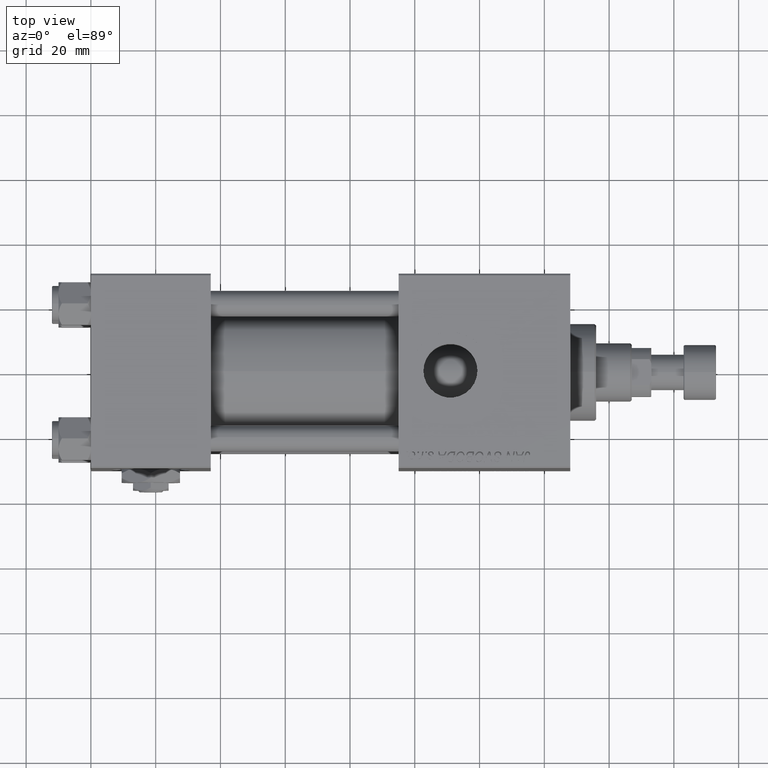
[diagram: clean part render]
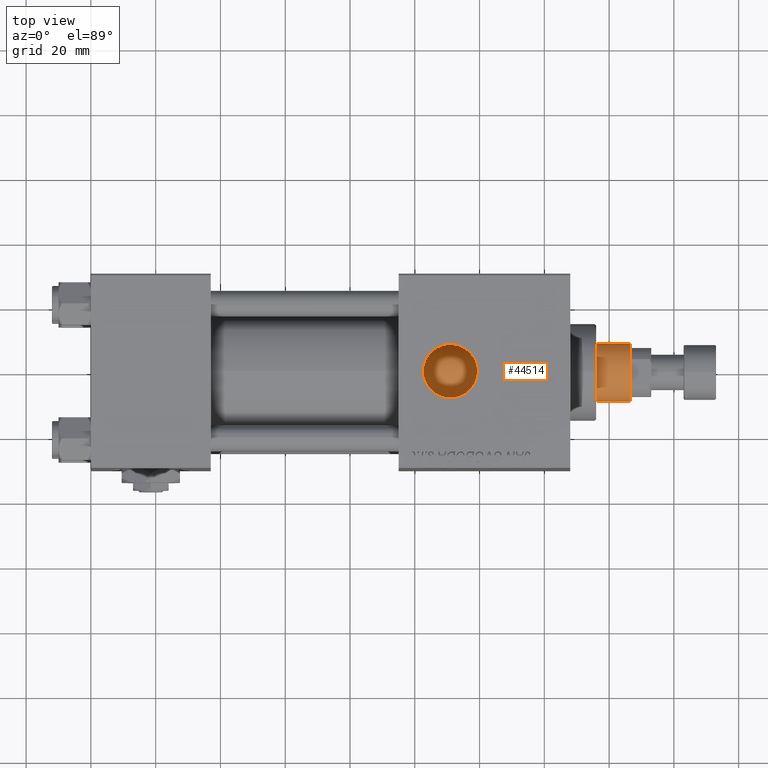
[diagram: same view with one face highlighted and labeled with its STEP entity id]
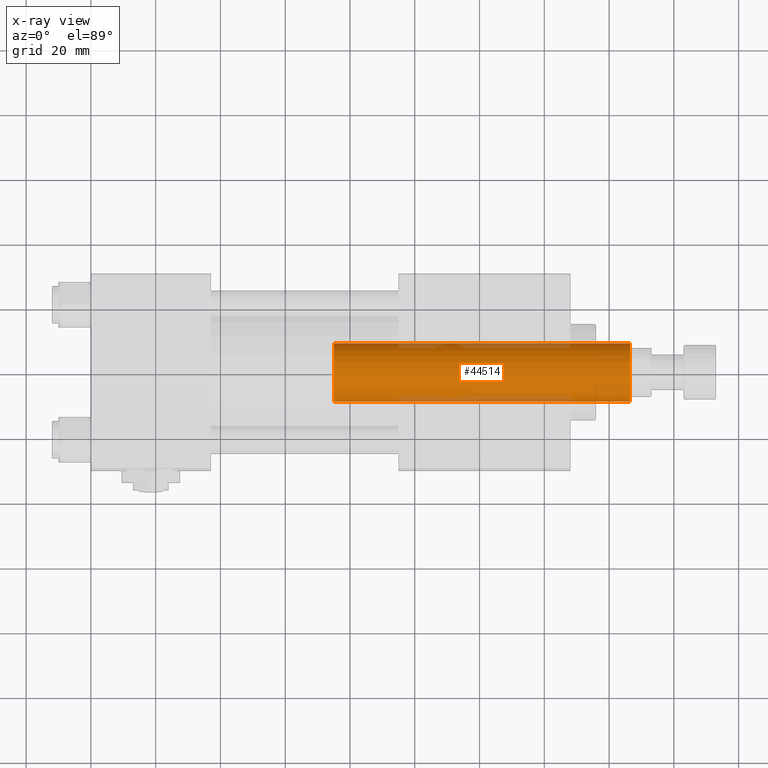
[diagram: x-ray of the same camera — body ghosted, the highlighted face saturated]
A machine part, top view. The second image highlights one B-rep face of the part: STEP entity #44514.
The next image is the same camera in x-ray: the body ghosted, the highlighted face saturated — about 11% of this face is hidden behind the body in this view.
In plain terms, the highlighted cylindrical surface (edge-blend (fillet) strip) has radius 9 mm, axis along (-1, 0, 0).
Its self-contained STEP definition (entity closure, byte-faithful):
#259 = CARTESIAN_POINT ( 'NONE',  ( 9.000000000000000000, 1.102182119232617714E-15, 38.00000000000000000 ) ) ;
#2128 = CARTESIAN_POINT ( 'NONE',  ( -9.000000000000000000, 0.000000000000000000, 129.5000000000000000 ) ) ;
#4273 = VERTEX_POINT ( 'NONE', #28519 ) ;
#8605 = ORIENTED_EDGE ( 'NONE', *, *, #10195, .T. ) ;
#9479 = CARTESIAN_POINT ( 'NONE',  ( -9.000000000000000000, 0.000000000000000000, 38.00000000000000000 ) ) ;
#10195 = EDGE_CURVE ( 'NONE', #40931, #51832, #46773, .T. ) ;
#10669 = DIRECTION ( 'NONE',  ( 0.000000000000000000, 0.000000000000000000, 1.000000000000000000 ) ) ;
#13427 = VECTOR ( 'NONE', #51701, 1000.000000000000000 ) ;
#14390 = VECTOR ( 'NONE', #28975, 1000.000000000000000 ) ;
#14797 = DIRECTION ( 'NONE',  ( 0.000000000000000000, 0.000000000000000000, -1.000000000000000000 ) ) ;
#15730 = AXIS2_PLACEMENT_3D ( 'NONE', #50818, #14797, #22549 ) ;
#17196 = ORIENTED_EDGE ( 'NONE', *, *, #45573, .F. ) ;
#18395 = DIRECTION ( 'NONE',  ( -0.000000000000000000, -0.000000000000000000, -1.000000000000000000 ) ) ;
#19994 = CIRCLE ( 'NONE', #15730, 9.000000000000000000 ) ;
#22549 = DIRECTION ( 'NONE',  ( 1.000000000000000000, 0.000000000000000000, 0.000000000000000000 ) ) ;
#23433 = LINE ( 'NONE', #27426, #13427 ) ;
#24605 = AXIS2_PLACEMENT_3D ( 'NONE', #26661, #18395, #34654 ) ;
#25247 = LINE ( 'NONE', #49527, #14390 ) ;
#26661 = CARTESIAN_POINT ( 'NONE',  ( 0.000000000000000000, 0.000000000000000000, 130.0000000000000000 ) ) ;
#27426 = CARTESIAN_POINT ( 'NONE',  ( -9.000000000000000000, 0.000000000000000000, 130.0000000000000000 ) ) ;
#27456 = DIRECTION ( 'NONE',  ( 1.000000000000000000, 0.000000000000000000, 0.000000000000000000 ) ) ;
#28519 = CARTESIAN_POINT ( 'NONE',  ( 9.000000000000000000, 1.102182119232617714E-15, 129.5000000000000000 ) ) ;
#28975 = DIRECTION ( 'NONE',  ( -0.000000000000000000, -0.000000000000000000, -1.000000000000000000 ) ) ;
#33212 = EDGE_LOOP ( 'NONE', ( #17196, #41853, #41140, #8605 ) ) ;
#33965 = EDGE_CURVE ( 'NONE', #4273, #45867, #19994, .T. ) ;
#34654 = DIRECTION ( 'NONE',  ( -1.000000000000000000, 0.000000000000000000, 0.000000000000000000 ) ) ;
#38657 = CYLINDRICAL_SURFACE ( 'NONE', #24605, 9.000000000000000000 ) ;
#40380 = EDGE_CURVE ( 'NONE', #45867, #40931, #23433, .T. ) ;
#40931 = VERTEX_POINT ( 'NONE', #9479 ) ;
#41140 = ORIENTED_EDGE ( 'NONE', *, *, #40380, .T. ) ;
#41853 = ORIENTED_EDGE ( 'NONE', *, *, #33965, .T. ) ;
#42670 = FACE_OUTER_BOUND ( 'NONE', #33212, .T. ) ;
#44514 = ADVANCED_FACE ( 'NONE', ( #42670 ), #38657, .T. ) ;
#45573 = EDGE_CURVE ( 'NONE', #4273, #51832, #25247, .T. ) ;
#45867 = VERTEX_POINT ( 'NONE', #2128 ) ;
#46773 = CIRCLE ( 'NONE', #49348, 9.000000000000000000 ) ;
#49348 = AXIS2_PLACEMENT_3D ( 'NONE', #51725, #10669, #27456 ) ;
#49527 = CARTESIAN_POINT ( 'NONE',  ( 9.000000000000000000, 1.102182119232617714E-15, 130.0000000000000000 ) ) ;
#50818 = CARTESIAN_POINT ( 'NONE',  ( 0.000000000000000000, 0.000000000000000000, 129.5000000000000000 ) ) ;
#51701 = DIRECTION ( 'NONE',  ( -0.000000000000000000, -0.000000000000000000, -1.000000000000000000 ) ) ;
#51725 = CARTESIAN_POINT ( 'NONE',  ( 0.000000000000000000, 0.000000000000000000, 38.00000000000000000 ) ) ;
#51832 = VERTEX_POINT ( 'NONE', #259 ) ;